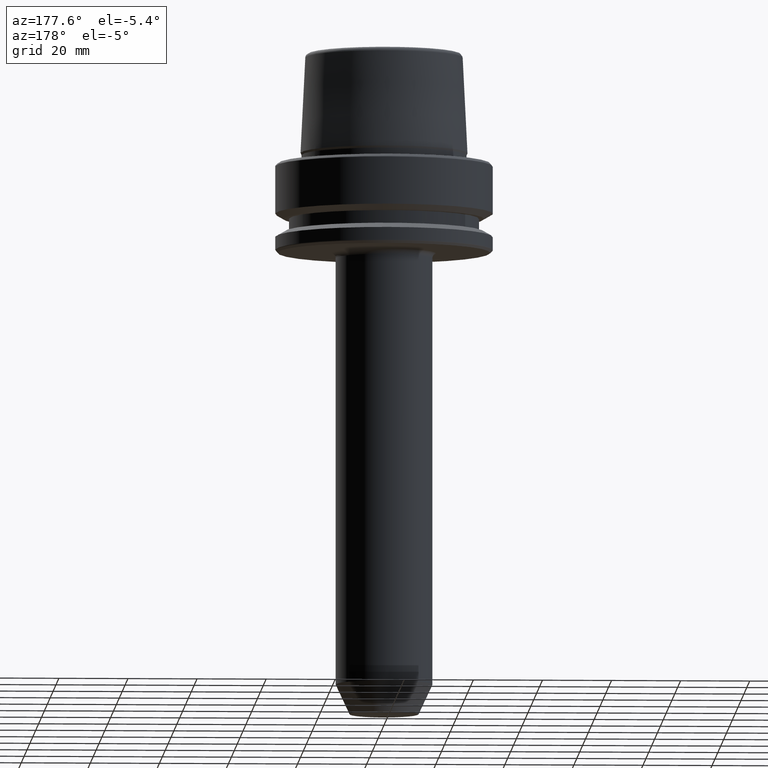
[diagram: clean part render]
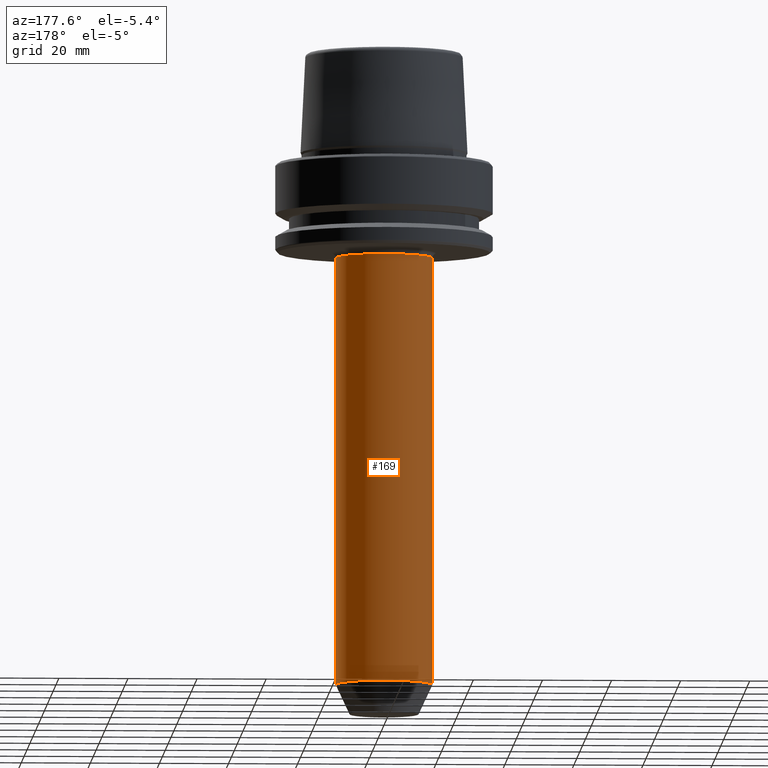
[diagram: same view with one face highlighted and labeled with its STEP entity id]
A machine part, auxiliary view. The second image highlights one B-rep face of the part: STEP entity #169.
In plain terms, the highlighted cylindrical surface (partial cylindrical patch) has radius 14 mm, axis along (-0, -0, 1).
Its self-contained STEP definition (entity closure, byte-faithful):
#10 = EDGE_LOOP ( 'NONE', ( #888, #443, #924, #342 ) ) ;
#58 = AXIS2_PLACEMENT_3D ( 'NONE', #477, #130, #637 ) ;
#130 = DIRECTION ( 'NONE',  ( 0.0000000000000000000, 0.0000000000000000000, -1.000000000000000000 ) ) ;
#145 = CARTESIAN_POINT ( 'NONE',  ( 0.0000000000000000000, 0.0000000000000000000, 31.31059451800105700 ) ) ;
#169 = ADVANCED_FACE ( 'NONE', ( #548 ), #418, .T. ) ;
#250 = CARTESIAN_POINT ( 'NONE',  ( -14.00000000000000000, 1.714505518806294600E-015, -151.4219723179616600 ) ) ;
#261 = LINE ( 'NONE', #322, #749 ) ;
#322 = CARTESIAN_POINT ( 'NONE',  ( -14.00000000000000000, 1.714505518806294600E-015, 31.31059451800105700 ) ) ;
#342 = ORIENTED_EDGE ( 'NONE', *, *, #612, .F. ) ;
#398 = VERTEX_POINT ( 'NONE', #788 ) ;
#418 = CYLINDRICAL_SURFACE ( 'NONE', #488, 14.00000000000000000 ) ;
#421 = CARTESIAN_POINT ( 'NONE',  ( 14.00000000000000000, 0.0000000000000000000, -151.4219723179616600 ) ) ;
#430 = CARTESIAN_POINT ( 'NONE',  ( 14.00000000000000000, 0.0000000000000000000, 31.31059451800105700 ) ) ;
#443 = ORIENTED_EDGE ( 'NONE', *, *, #747, .T. ) ;
#447 = DIRECTION ( 'NONE',  ( -0.0000000000000000000, -0.0000000000000000000, 1.000000000000000000 ) ) ;
#468 = VERTEX_POINT ( 'NONE', #421 ) ;
#477 = CARTESIAN_POINT ( 'NONE',  ( 0.0000000000000000000, 0.0000000000000000000, -27.50000000000001100 ) ) ;
#488 = AXIS2_PLACEMENT_3D ( 'NONE', #145, #1077, #1005 ) ;
#548 = FACE_OUTER_BOUND ( 'NONE', #10, .T. ) ;
#578 = AXIS2_PLACEMENT_3D ( 'NONE', #1188, #724, #798 ) ;
#589 = EDGE_CURVE ( 'NONE', #468, #963, #1229, .T. ) ;
#612 = EDGE_CURVE ( 'NONE', #468, #398, #768, .T. ) ;
#634 = VECTOR ( 'NONE', #1253, 1000.000000000000000 ) ;
#637 = DIRECTION ( 'NONE',  ( 1.000000000000000000, 0.0000000000000000000, 0.0000000000000000000 ) ) ;
#643 = CARTESIAN_POINT ( 'NONE',  ( -14.00000000000000000, 1.714505518806294600E-015, -27.50000000000001100 ) ) ;
#686 = VERTEX_POINT ( 'NONE', #643 ) ;
#724 = DIRECTION ( 'NONE',  ( -0.0000000000000000000, -0.0000000000000000000, 1.000000000000000000 ) ) ;
#747 = EDGE_CURVE ( 'NONE', #963, #686, #261, .T. ) ;
#749 = VECTOR ( 'NONE', #447, 1000.000000000000000 ) ;
#768 = LINE ( 'NONE', #430, #634 ) ;
#788 = CARTESIAN_POINT ( 'NONE',  ( 14.00000000000000000, 0.0000000000000000000, -27.50000000000001100 ) ) ;
#798 = DIRECTION ( 'NONE',  ( 1.000000000000000000, 0.0000000000000000000, 0.0000000000000000000 ) ) ;
#888 = ORIENTED_EDGE ( 'NONE', *, *, #589, .T. ) ;
#893 = CIRCLE ( 'NONE', #58, 14.00000000000000000 ) ;
#924 = ORIENTED_EDGE ( 'NONE', *, *, #1055, .T. ) ;
#963 = VERTEX_POINT ( 'NONE', #250 ) ;
#1005 = DIRECTION ( 'NONE',  ( 1.000000000000000000, 0.0000000000000000000, 0.0000000000000000000 ) ) ;
#1055 = EDGE_CURVE ( 'NONE', #686, #398, #893, .T. ) ;
#1077 = DIRECTION ( 'NONE',  ( -0.0000000000000000000, -0.0000000000000000000, 1.000000000000000000 ) ) ;
#1188 = CARTESIAN_POINT ( 'NONE',  ( 0.0000000000000000000, 0.0000000000000000000, -151.4219723179616600 ) ) ;
#1229 = CIRCLE ( 'NONE', #578, 14.00000000000000000 ) ;
#1253 = DIRECTION ( 'NONE',  ( -0.0000000000000000000, -0.0000000000000000000, 1.000000000000000000 ) ) ;